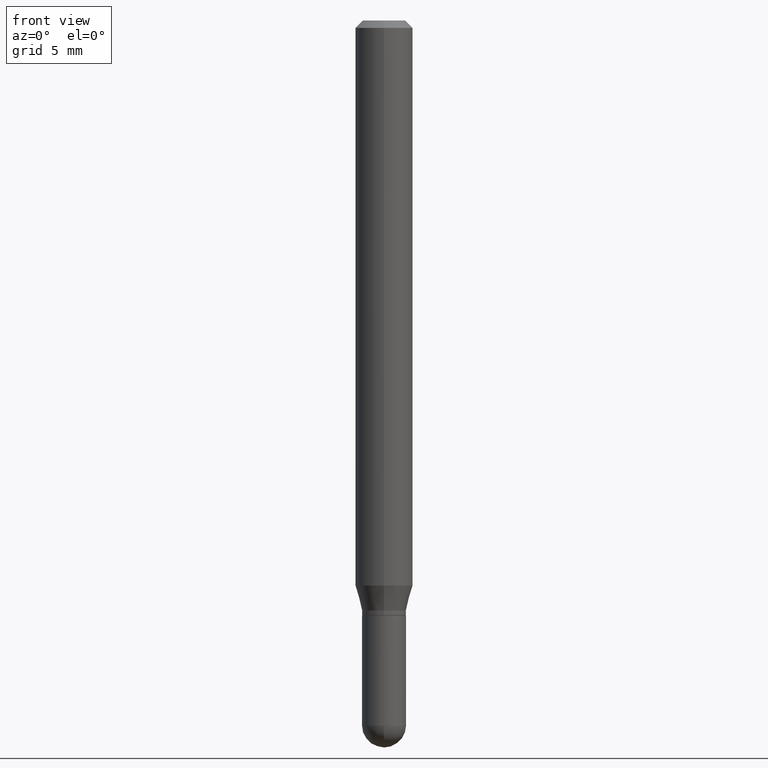
[diagram: clean part render]
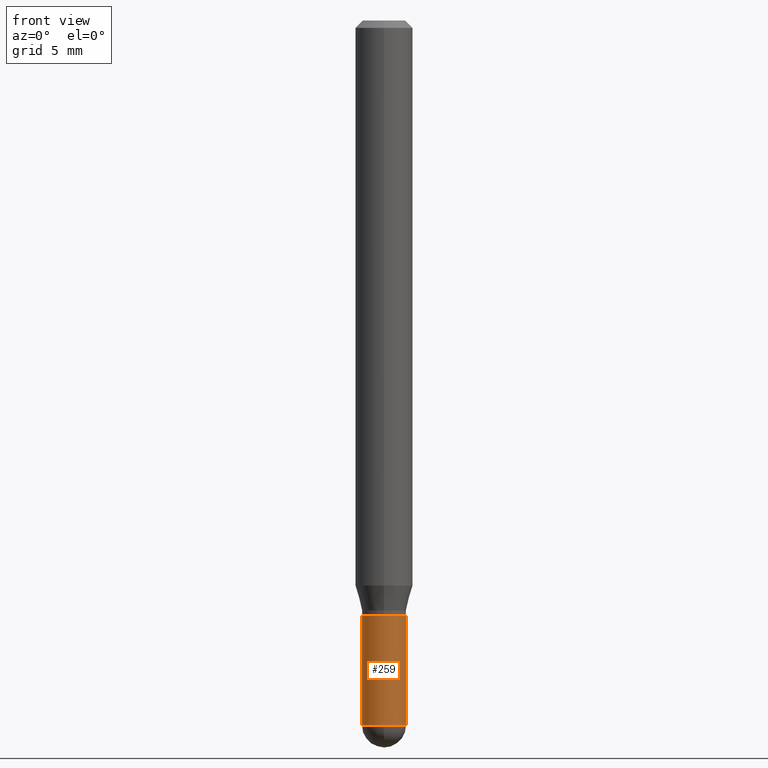
[diagram: same view with one face highlighted and labeled with its STEP entity id]
A machine part, front view. The second image highlights one B-rep face of the part: STEP entity #259.
In plain terms, the highlighted cylindrical surface (edge-blend (fillet) strip) has radius 1.1506 mm, axis along (-0, 0, 1).
Its self-contained STEP definition (entity closure, byte-faithful):
#5 = ORIENTED_EDGE ( 'NONE', *, *, #477, .T. ) ;
#14 = DIRECTION ( 'NONE',  ( -2.445468806185136597E-29, 3.491481338843145583E-15, 1.000000000000000000 ) ) ;
#15 = CARTESIAN_POINT ( 'NONE',  ( 0.000000000000000000, 0.000000000000000000, 0.000000000000000000 ) ) ;
#21 = CARTESIAN_POINT ( 'NONE',  ( 3.547886144013395202E-29, -5.065441126393634337E-15, -1.450799999999999645 ) ) ;
#26 = AXIS2_PLACEMENT_3D ( 'NONE', #15, #14, #419 ) ;
#31 = VECTOR ( 'NONE', #383, 39.37007874015748143 ) ;
#37 = VERTEX_POINT ( 'NONE', #393 ) ;
#52 = CIRCLE ( 'NONE', #489, 0.04530000000000000693 ) ;
#108 = DIRECTION ( 'NONE',  ( -2.445468806185136597E-29, 3.491481338843145583E-15, 1.000000000000000000 ) ) ;
#112 = ORIENTED_EDGE ( 'NONE', *, *, #175, .F. ) ;
#114 = AXIS2_PLACEMENT_3D ( 'NONE', #370, #317, #448 ) ;
#119 = ORIENTED_EDGE ( 'NONE', *, *, #472, .T. ) ;
#122 = CIRCLE ( 'NONE', #186, 0.04530000000000000693 ) ;
#126 = ORIENTED_EDGE ( 'NONE', *, *, #252, .F. ) ;
#136 = CARTESIAN_POINT ( 'NONE',  ( -0.04530000000000000693, 3.218758592993254334E-16, -2.228277595885472564E-30 ) ) ;
#146 = CARTESIAN_POINT ( 'NONE',  ( -0.04529999999999999999, -4.348329579537264718E-15, -1.224399999999999933 ) ) ;
#175 = EDGE_CURVE ( 'NONE', #424, #390, #364, .T. ) ;
#180 = DIRECTION ( 'NONE',  ( 1.000000000000000000, -6.982962677686269866E-15, 0.000000000000000000 ) ) ;
#186 = AXIS2_PLACEMENT_3D ( 'NONE', #443, #108, #262 ) ;
#198 = LINE ( 'NONE', #428, #31 ) ;
#245 = ORIENTED_EDGE ( 'NONE', *, *, #422, .T. ) ;
#252 = EDGE_CURVE ( 'NONE', #369, #424, #456, .T. ) ;
#256 = DIRECTION ( 'NONE',  ( -2.445468806185136877E-29, 3.491481338843145188E-15, 1.000000000000000000 ) ) ;
#259 = ADVANCED_FACE ( 'NONE', ( #380 ), #492, .T. ) ;
#262 = DIRECTION ( 'NONE',  ( 1.000000000000000000, -6.982962677686269866E-15, 0.000000000000000000 ) ) ;
#263 = VECTOR ( 'NONE', #256, 39.37007874015748143 ) ;
#278 = DIRECTION ( 'NONE',  ( -2.445468806185136597E-29, 3.491481338843145583E-15, 1.000000000000000000 ) ) ;
#311 = EDGE_LOOP ( 'NONE', ( #126, #119, #5, #245, #112 ) ) ;
#317 = DIRECTION ( 'NONE',  ( -2.445468806185136597E-29, 3.491481338843145583E-15, 1.000000000000000000 ) ) ;
#339 = CARTESIAN_POINT ( 'NONE',  ( 0.04530000000000000693, -4.986533648135779220E-15, -1.450799999999999645 ) ) ;
#364 = CIRCLE ( 'NONE', #114, 0.04529999999999999999 ) ;
#369 = VERTEX_POINT ( 'NONE', #497 ) ;
#370 = CARTESIAN_POINT ( 'NONE',  ( 2.994232006293080857E-29, -4.274969751279546755E-15, -1.224399999999999933 ) ) ;
#380 = FACE_OUTER_BOUND ( 'NONE', #311, .T. ) ;
#383 = DIRECTION ( 'NONE',  ( -2.445468806185136877E-29, 3.491481338843145188E-15, 1.000000000000000000 ) ) ;
#390 = VERTEX_POINT ( 'NONE', #404 ) ;
#393 = CARTESIAN_POINT ( 'NONE',  ( -3.163282092991518934E-16, -0.04530000000000499599, -1.450799999999999423 ) ) ;
#404 = CARTESIAN_POINT ( 'NONE',  ( 0.04529999999999999999, -4.591297960578735035E-15, -1.224399999999999933 ) ) ;
#419 = DIRECTION ( 'NONE',  ( 1.000000000000000000, -6.982962677686266711E-15, 4.876176775795936353E-29 ) ) ;
#422 = EDGE_CURVE ( 'NONE', #507, #390, #198, .T. ) ;
#424 = VERTEX_POINT ( 'NONE', #146 ) ;
#428 = CARTESIAN_POINT ( 'NONE',  ( 0.04530000000000000693, -3.163282092991879344E-16, 2.208908079435559539E-30 ) ) ;
#443 = CARTESIAN_POINT ( 'NONE',  ( 3.547886144013395202E-29, -5.065441126393634337E-15, -1.450799999999999645 ) ) ;
#448 = DIRECTION ( 'NONE',  ( 1.000000000000000000, -6.982962677686271444E-15, 0.000000000000000000 ) ) ;
#456 = LINE ( 'NONE', #136, #263 ) ;
#472 = EDGE_CURVE ( 'NONE', #369, #37, #52, .T. ) ;
#477 = EDGE_CURVE ( 'NONE', #37, #507, #122, .T. ) ;
#489 = AXIS2_PLACEMENT_3D ( 'NONE', #21, #278, #180 ) ;
#492 = CYLINDRICAL_SURFACE ( 'NONE', #26, 0.04530000000000000693 ) ;
#497 = CARTESIAN_POINT ( 'NONE',  ( -0.04530000000000000693, -4.348329579537264718E-15, -1.450799999999999645 ) ) ;
#507 = VERTEX_POINT ( 'NONE', #339 ) ;